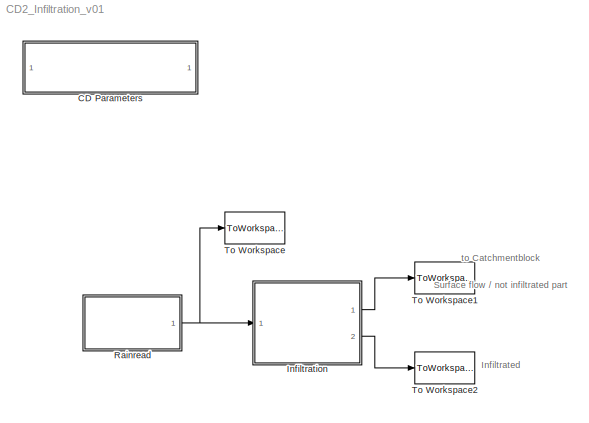
MODEL CD2_Infiltration_v01
KIND model
BLOCK [SubSystem] CD Parameters
  FunctionWithSeparateData = off
  MaskCallbackString = ||
  MaskDescription = Block that sets the global parameters required in City Drain 1.0. Following paramters are set without user's input:\n\n- 'Solver' --> 'FixedStepDiscrete'\n- 'TimeSaveName' --> 'cd_time'\n- 'Decimation' --> '1'\n- 'LimitDataPoints' -->  'off'
  MaskDisplay = \nplot(0,0,100,100);\n\ntext(50,65,'CITY DRAIN','HorizontalAlignment','center');\ntext(50,35,'PARAMETERS','HorizontalAlignment','center');\n\n\nimage(imread('CityDrain_SimParam.jpg'))\n\n
  MaskEnableString = on,on,on
  MaskHideContents = off
  MaskIconFrame = on
  MaskIconOpaque = on
  MaskIconRotate = none
  MaskIconUnits = autoscale
  MaskInitialization = % toplevel systems' name --> Plant file name;\ntls=bdroot(gcb); \nset_param(tls, 'Solver', 'FixedStepDiscrete'); \nset_param(tls, 'TimeSaveName', 'cd_time');\nset_param(tls, 'Decimation', '1');\nset_param(tls, 'LimitDataPoints', 'off');\nset_param(tls, 'ScreenColor', 'white');\n\ntstep_char=num2str(t_step); % Setting the discrete time step\nset_param(tls, 'FixedStep', tstep_char); \n\ntstart_char=...<+182ch>
  MaskPromptString = Sampling Time [s]|Start Time [s]|Stop Time [s]
  MaskStyleString = edit,edit,edit
  MaskTabNameString = ,,
  MaskToolTipString = on,on,on
  MaskTunableValueString = on,on,on
  MaskType = City Drain 1.0 - Simulation parameters
  MaskValueString = 300|0|12000
  MaskVarAliasString = ,,
  MaskVariables = t_step=@1;t_start=@2;t_stop=@3;
  MaskVisibilityString = on,on,on
  MinAlgLoopOccurrences = off
  Ports = []
  RTWSystemCode = Auto
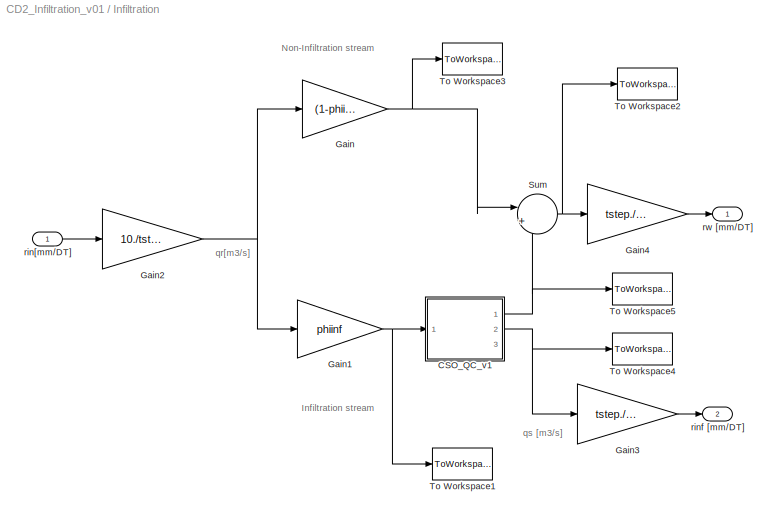
BLOCK [SubSystem] Infiltration
  FunctionWithSeparateData = off
  MaskCallbackString = ||||||
  MaskDescription = Infiltration block\nDynamic swale infiltration according to ATV 138. Infiltration rates and swale volume is design according to ATV 138. \nBlock used r[mm/DT] as input and output. Thus the block is designed as \"pre-block\" to catchment type blocks entering at rain input.\n\nFunction used:\nNo other specific functions used than standard city drain functions.
  MaskDisplay = \nplot(0,0,100,100);\n\n\ntext(50,60,'INF','HorizontalAlignment','center');\ntext(50,40,'ATV','HorizontalAlignment','center');\ntext(50,20,'138','HorizontalAlignment','center');\n\nport_label('input',1,'rin');\nport_label('output',1,'rw');\nport_label('output',2,'rinf');\n\n
  MaskEnableString = on,on,on,on,on,on,on
  MaskHideContents = off
  MaskIconFrame = on
  MaskIconOpaque = on
  MaskIconRotate = none
  MaskIconUnits = autoscale
  MaskInitialization = % reading the toplevel systems' name \n% --> Plant file name;\ntls=bdroot(gcb); \n% Obtaining the fixed sampling time\nt_samp_char=get_param(tls, 'FixedStep');\n% Convertion to numeric value\ntstep = str2num(t_samp_char); \n\n% Calculations for Infiltration\nAsu=Ared.*phiinf; 	% in [ha]\n\nAu=Asu./(1+Rsu); 	% in [ha]\nAs=Asu-Au;			% in [ha]\n\nqs=As.*10000.*kf./2; % [m3/s]\nV=((Au+As).*10000.*10.^...<+34ch>
  MaskPromptString = Ared [ha] - Reduced (flow contributing areas|phi [ - ] - Portion of infiltrated area Ared/(Au+As)|kf [m/s] - permiability of swale's soil material |As/Au [ 0.1 - 0.2 ] - Ratio of swale area (As) to connected Area (Au)|rD(n) [l/(s.ha)] - Design rain intensity of the swale|D [min] - Duration of design rain rD(n)|fz [-] - Loading coefficient (ATV A117)
  MaskStyleString = edit,edit,edit,edit,edit,edit,edit
  MaskTabNameString = ,,,,,,
  MaskToolTipString = on,on,on,on,on,on,on
  MaskTunableValueString = on,on,on,on,on,on,on
  MaskType = ATV 138 - Dynamic Infiltration
  MaskValueString = 100|0.2|0.00005|0.1|131.7|30|1.2
  MaskVarAliasString = ,,,,,,
  MaskVariables = Ared=@1;phiinf=@2;kf=@3;Rsu=@4;rDn=@5;D=@6;fz=@7;
  MaskVisibilityString = on,on,on,on,on,on,on
  MinAlgLoopOccurrences = off
  Ports = [1, 2]
  RTWSystemCode = Auto
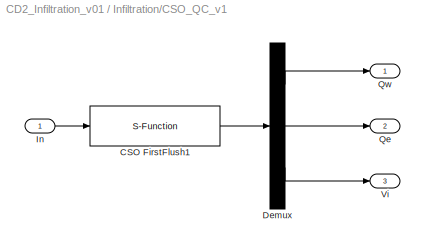
BLOCK [SubSystem] Infiltration/CSO_QC_v1
  FunctionWithSeparateData = off
  MaskCallbackString = |||
  MaskDescription = Combined sewer overflow structure. \nDiverts the inflow given into effluent and overflow. The model implemented consideres hydraulics and pollutant routing by full mixing in the structure. \n\nIn addition to Type A a retenetion/sedimentation factor is introduced. The factor may be used for applying different ratios in pollutant concentration for effluent flow (QE) and overflow (QW).\n\nFunction us...<+21ch>
  MaskDisplay = \nplot(0,0,100,100);\n\n\ntext(50,60,'CSO','HorizontalAlignment','center');\ntext(50,30,'Typ B','HorizontalAlignment','center');\n\n\nport_label('input',1,'Qi');\nport_label('output',1,'Qw');\nport_label('output',2,'Qe');\nport_label('output',3,'Vi');\n
  MaskEnableString = on,on,on,on
  MaskHideContents = off
  MaskIconFrame = on
  MaskIconOpaque = on
  MaskIconRotate = none
  MaskIconUnits = autoscale
  MaskInitialization = % reading the toplevel systems' name \n% --> Plant file name;\ntls=bdroot(gcb); \n% Obtaining the fixed sampling time\nt_samp_char=get_param(tls, 'FixedStep');\n% Convertion to numeric value\ntstep = str2num(t_samp_char);
  MaskPromptString = Basin Volume (m3)|Maximum Effluent flow [m3/s]|Number of Pollutants [-]|n-sed (Vect. of Sed. Coefficients)
  MaskStyleString = edit,edit,edit,edit
  MaskTabNameString = ,,,
  MaskToolTipString = on,on,on,on
  MaskTunableValueString = on,on,on,on
  MaskType = CSO Typ B - Combined sewer overflow
  MaskValueString = V|qs|0|[]
  MaskVarAliasString = ,,,
  MaskVariables = Vmax=@1;Qemax=@2;n_comp=@3;n_sed=@4;
  MaskVisibilityString = on,on,on,on
  MinAlgLoopOccurrences = off
  Ports = [1, 3]
  RTWSystemCode = Auto
BLOCK [S-Function] Infiltration/CSO_QC_v1/CSO FirstFlush1
  FunctionName = CD1_sfun_cso_B
  Parameters = Vmax,Qemax,n_comp,n_sed,tstep
  Ports = [1, 1]
BLOCK [Demux] Infiltration/CSO_QC_v1/Demux
  Outputs = [ (n_comp+1) (n_comp+1) (n_comp+1)]
  Ports = [1, 3]
BLOCK [Inport] Infiltration/CSO_QC_v1/In
  IconDisplay = Port number
BLOCK [Outport] Infiltration/CSO_QC_v1/Qe
  IconDisplay = Port number
  Port = 2
BLOCK [Outport] Infiltration/CSO_QC_v1/Qw
  IconDisplay = Port number
BLOCK [Outport] Infiltration/CSO_QC_v1/Vi
  IconDisplay = Port number
  Port = 3
BLOCK [Gain] Infiltration/Gain
  Gain = (1-phiinf)
BLOCK [Gain] Infiltration/Gain1
  Gain = phiinf
BLOCK [Gain] Infiltration/Gain2
  Gain = 10./tstep.*Ared
BLOCK [Gain] Infiltration/Gain3
  Gain = tstep./10./Ared
BLOCK [Gain] Infiltration/Gain4
  Gain = tstep./10./Ared
BLOCK [Sum] Infiltration/Sum
  IconShape = round
  InputSameDT = off
  Inputs = |++
  OutDataTypeMode = Inherit via internal rule
  Ports = [2, 1]
BLOCK [ToWorkspace] Infiltration/To Workspace1
  MaxDataPoints = inf
  SampleTime = -1
  SaveFormat = Array
  VariableName = qin2
BLOCK [ToWorkspace] Infiltration/To Workspace2
  MaxDataPoints = inf
  SampleTime = -1
  SaveFormat = Array
  VariableName = qouttot
BLOCK [ToWorkspace] Infiltration/To Workspace3
  MaxDataPoints = inf
  SampleTime = -1
  SaveFormat = Array
  VariableName = qin1
BLOCK [ToWorkspace] Infiltration/To Workspace4
  MaxDataPoints = inf
  SampleTime = -1
  SaveFormat = Array
  VariableName = qouts
BLOCK [ToWorkspace] Infiltration/To Workspace5
  MaxDataPoints = inf
  SampleTime = -1
  SaveFormat = Array
  VariableName = qoutw
BLOCK [Inport] Infiltration/rin[mm//DT]
  IconDisplay = Port number
BLOCK [Outport] Infiltration/rinf [mm//DT]
  IconDisplay = Port number
  Port = 2
BLOCK [Outport] Infiltration/rw [mm//DT]
  IconDisplay = Port number
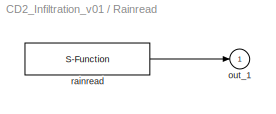
BLOCK [SubSystem] Rainread
  FunctionWithSeparateData = off
  MaskCallbackString = |
  MaskDescription = Read raindata from ASCII File in following formats:\n\n*.ixx ... Format used by the Austrian Hydrographic Service.\n*.km2 ... Format used in the Mouse Software from DHI (Danish Hydraulic Institute)\n*.mse ... modified mse format used in  Mouse Software from DHI (Danish Hydraulic Institute)\n\nUsed function: CD1_mfun_rainread.m
  MaskDisplay = plot(0,0,100,100);\n\ntext(40,40,'RAIN READ');\nplot(\n[5 10 10 15 15 20 20 25 25 30 30 40 40 45],\n[0 0 20 20 40 40 60 60 30 30 0 0 0 0]+20);\n
  MaskEnableString = on,on
  MaskHideContents = off
  MaskIconFrame = on
  MaskIconOpaque = on
  MaskIconRotate = none
  MaskIconUnits = autoscale
  MaskInitialization = % cache table size set to 1000\n%table=zeros(1000,2)\n[table,tablestep]=CD1_mfun_rainread(table0);\n\n% reading the toplevel systems' name \n% --> Plant file name;\ntls=bdroot(gcb); \n% Obtaining the fixed sampling time\nt_samp_char=get_param(tls, 'FixedStep');\n% Convertion to numeric value\ntstep = str2num(t_samp_char); \n
  MaskPromptString = Filename|Cylic repitition
  MaskStyleString = edit,checkbox
  MaskTabNameString = ,
  MaskToolTipString = on,on
  MaskTunableValueString = on,on
  MaskType = Rain Read
  MaskValueString = 'test2.km2'|off
  MaskVarAliasString = ,
  MaskVariables = table0=@1;crep=&2;
  MaskVisibilityString = on,on
  MinAlgLoopOccurrences = off
  Ports = [0, 1]
  RTWSystemCode = Auto
  ShowPortLabels = off
BLOCK [Outport] Rainread/out_1
  BusOutputAsStruct = off
  IconDisplay = Port number
BLOCK [S-Function] Rainread/rainread
  FunctionName = CD1_sfun_rainread
  MaskIconFrame = on
  MaskIconOpaque = on
  MaskIconRotate = none
  MaskIconUnits = autoscale
  Parameters = crep,table,tablestep,tstep
  Ports = [0, 1]
BLOCK [ToWorkspace] To Workspace
  MaxDataPoints = inf
  SampleTime = -1
  SaveFormat = Array
  VariableName = rin
BLOCK [ToWorkspace] To Workspace1
  MaxDataPoints = inf
  SampleTime = -1
  SaveFormat = Array
  VariableName = rw
BLOCK [ToWorkspace] To Workspace2
  MaxDataPoints = inf
  SampleTime = -1
  SaveFormat = Array
  VariableName = rinf
ANNOTATION (root): Infiltrated
ANNOTATION (root): Surface flow / not infiltrated part
ANNOTATION (root): to Catchmentblock
ANNOTATION Infiltration: Infiltration stream
ANNOTATION Infiltration: Non-Infiltration stream
ANNOTATION Infiltration: qr[m3/s]
ANNOTATION Infiltration: qs [m3/s]
LINE Infiltration/CSO_QC_v1/CSO FirstFlush1:1 -> Infiltration/CSO_QC_v1/Demux:1
LINE Infiltration/CSO_QC_v1/Demux:1 -> Infiltration/CSO_QC_v1/Qw:1
LINE Infiltration/CSO_QC_v1/Demux:2 -> Infiltration/CSO_QC_v1/Qe:1
LINE Infiltration/CSO_QC_v1/Demux:3 -> Infiltration/CSO_QC_v1/Vi:1
LINE Infiltration/CSO_QC_v1/In:1 -> Infiltration/CSO_QC_v1/CSO FirstFlush1:1
NET Infiltration/CSO_QC_v1:1 -> Infiltration/Sum:2, Infiltration/To Workspace5:1
NET Infiltration/CSO_QC_v1:2 -> Infiltration/Gain3:1, Infiltration/To Workspace4:1
NET Infiltration/Gain1:1 -> Infiltration/CSO_QC_v1:1, Infiltration/To Workspace1:1
NET Infiltration/Gain2:1 -> Infiltration/Gain1:1, Infiltration/Gain:1
LINE Infiltration/Gain3:1 -> Infiltration/rinf [mm//DT]:1
LINE Infiltration/Gain4:1 -> Infiltration/rw [mm//DT]:1
NET Infiltration/Gain:1 -> Infiltration/Sum:1, Infiltration/To Workspace3:1
NET Infiltration/Sum:1 -> Infiltration/Gain4:1, Infiltration/To Workspace2:1
LINE Infiltration/rin[mm//DT]:1 -> Infiltration/Gain2:1
LINE Infiltration:1 -> To Workspace1:1
LINE Infiltration:2 -> To Workspace2:1
LINE Rainread/rainread:1 -> Rainread/out_1:1
NET Rainread:1 -> Infiltration:1, To Workspace:1
note: NET lines group one-source signal fan-out (src -> all destinations, sorted); 1:1 wires keep LINE
